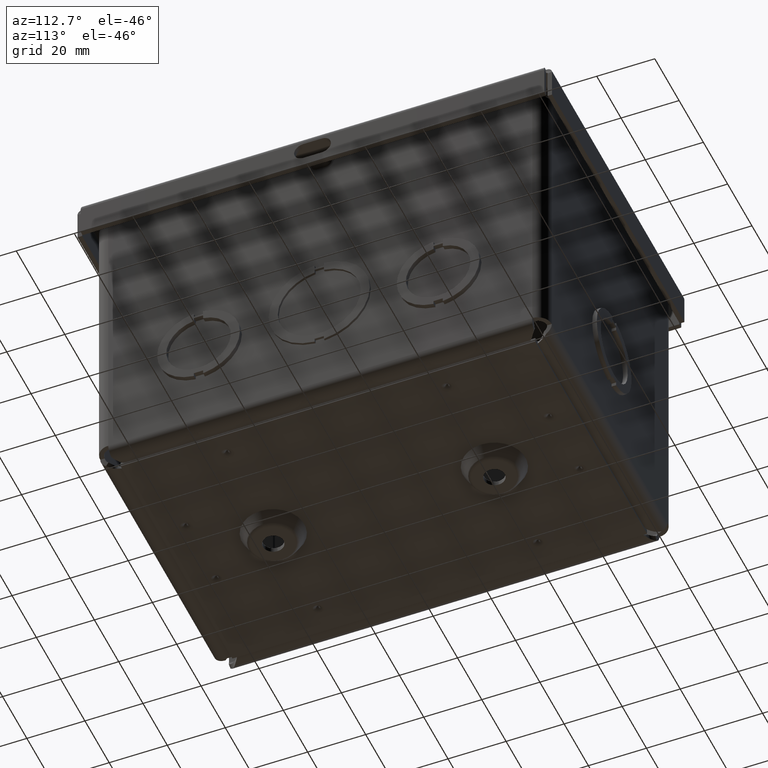
[diagram: clean part render]
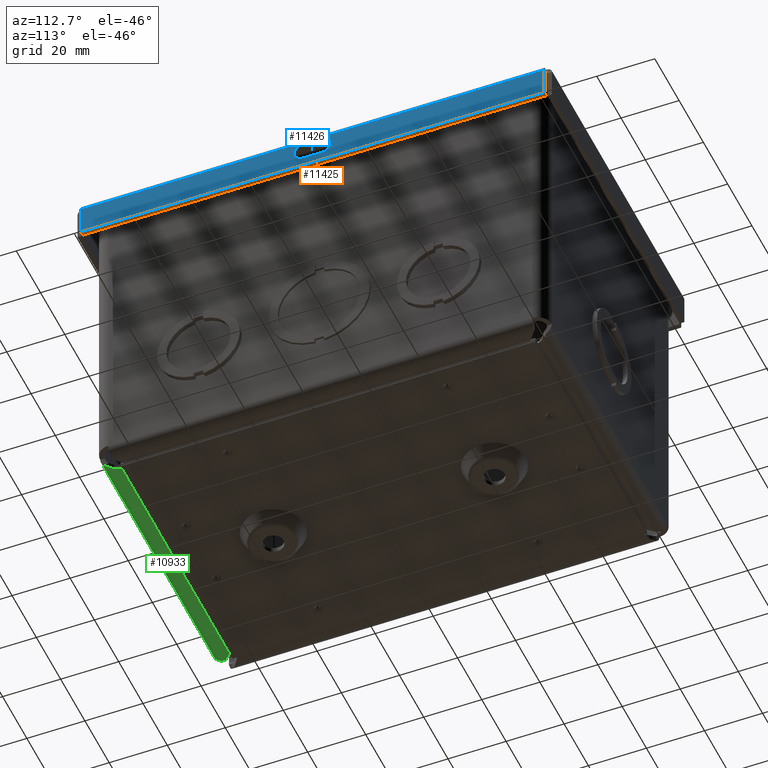
[diagram: same view with three faces highlighted in distinct colors, each labeled with its STEP entity id]
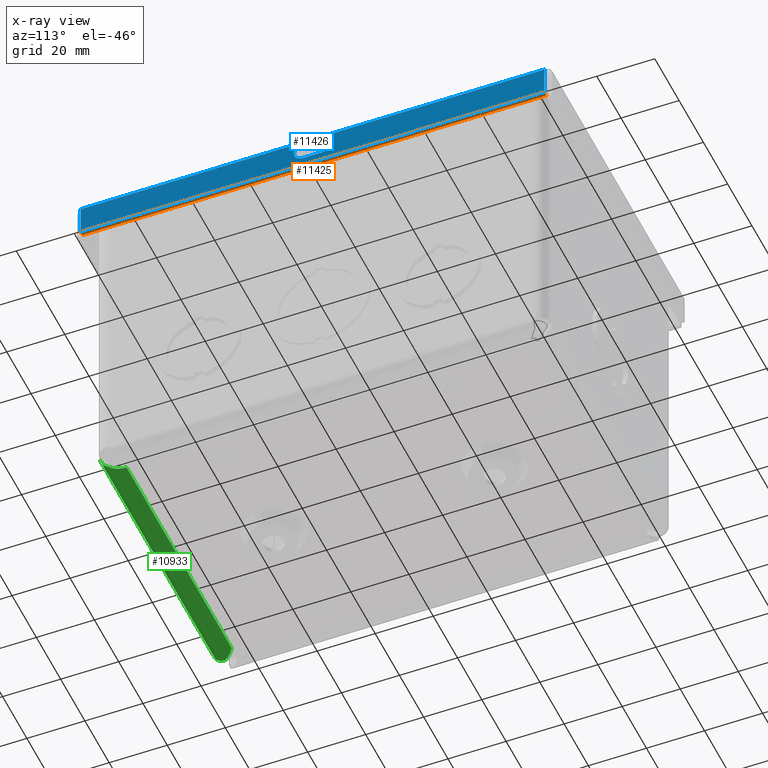
[diagram: x-ray of the same camera — body ghosted, the three highlighted faces saturated]
A machine part, auxiliary view with three faces highlighted in distinct colors.
The next image is the same camera in x-ray (body ghosted, the three faces saturated) — at least one of them is partly hidden behind the body in this view.
Their STEP definitions:

[orange] entity #11425 — the highlighted planar face has unit normal (-0, 0, -1).
#1460=LINE($,#19855,#2490);
#1464=LINE($,#19861,#2494);
#1468=LINE($,#19921,#2498);
#1469=LINE($,#19923,#2499);
#2490=VECTOR($,#15042,6.29040291308792);
#2494=VECTOR($,#15048,0.0619999999999998);
#2498=VECTOR($,#15054,0.0619999999999998);
#2499=VECTOR($,#15057,6.29040291308792);
#2878=PLANE($,#12307);
#3629=FACE_OUTER_BOUND($,#4385,.T.);
#4385=EDGE_LOOP($,(#10075,#10076,#10077,#10078));
#5588=VERTEX_POINT($,#19852);
#5589=VERTEX_POINT($,#19854);
#5590=VERTEX_POINT($,#19858);
#5591=VERTEX_POINT($,#19919);
#7040=EDGE_CURVE($,#5588,#5589,#1460,.T.);
#7044=EDGE_CURVE($,#5589,#5590,#1464,.T.);
#7050=EDGE_CURVE($,#5588,#5591,#1468,.T.);
#7051=EDGE_CURVE($,#5591,#5590,#1469,.T.);
#10075=ORIENTED_EDGE($,*,*,#7051,.T.);
#10076=ORIENTED_EDGE($,*,*,#7044,.F.);
#10077=ORIENTED_EDGE($,*,*,#7040,.F.);
#10078=ORIENTED_EDGE($,*,*,#7050,.T.);
#11425=ADVANCED_FACE($,(#3629),#2878,.T.);
#12307=AXIS2_PLACEMENT_3D($,#19922,#15055,#15056);
#15042=DIRECTION($,(5.59482469102442E-017,-1.,5.59482469102441E-017));
#15048=DIRECTION($,(1.,5.59482469102441E-017,-1.71512449944288E-015));
#15054=DIRECTION($,(1.,5.59482469102441E-017,-1.71512449944288E-015));
#15055=DIRECTION('center_axis',(-1.71512449944288E-015,-5.59482469102442E-017,
-1.));
#15056=DIRECTION('ref_axis',(-1.,0.,1.69197988952874E-015));
#15057=DIRECTION($,(5.59482469102442E-017,-1.,5.59482469102441E-017));
#19852=CARTESIAN_POINT('',(2.15625,3.14520145654396,-0.438000000000001));
#19854=CARTESIAN_POINT('',(2.15625,-3.14520145654396,-0.438));
#19855=CARTESIAN_POINT($,(2.15625,3.14520145654396,-0.438000000000001));
#19858=CARTESIAN_POINT('',(2.21825,-3.14520145654396,-0.438));
#19861=CARTESIAN_POINT($,(2.15625,-3.14520145654396,-0.438));
#19919=CARTESIAN_POINT('',(2.21825,3.14520145654396,-0.438000000000001));
#19921=CARTESIAN_POINT($,(2.15625,3.14520145654396,-0.438000000000001));
#19922=CARTESIAN_POINT('Origin',(2.15625,3.14520145654396,-0.438000000000001));
#19923=CARTESIAN_POINT($,(2.21825,3.14520145654396,-0.438000000000001));

[blue] entity #11426 — the highlighted planar face has unit normal (1, -0, -0).
#1351=LINE($,#19319,#2381);
#1355=LINE($,#19330,#2385);
#1456=LINE($,#19831,#2486);
#1462=LINE($,#19859,#2492);
#1467=LINE($,#19920,#2497);
#1469=LINE($,#19923,#2499);
#2381=VECTOR($,#14721,0.249999999999999);
#2385=VECTOR($,#14733,0.249999999999999);
#2486=VECTOR($,#15036,6.29040291308792);
#2492=VECTOR($,#15046,0.40675);
#2497=VECTOR($,#15053,0.40675);
#2499=VECTOR($,#15057,6.29040291308792);
#2879=PLANE($,#12308);
#3040=FACE_BOUND($,#4386,.T.);
#3041=FACE_BOUND($,#4387,.T.);
#4386=EDGE_LOOP($,(#10079,#10080,#10081,#10082));
#4387=EDGE_LOOP($,(#10083,#10084,#10085,#10086));
#4635=CIRCLE($,#12196,0.125);
#4637=CIRCLE($,#12200,0.125);
#5484=VERTEX_POINT($,#19309);
#5485=VERTEX_POINT($,#19310);
#5488=VERTEX_POINT($,#19318);
#5490=VERTEX_POINT($,#19324);
#5583=VERTEX_POINT($,#19829);
#5584=VERTEX_POINT($,#19830);
#5590=VERTEX_POINT($,#19858);
#5591=VERTEX_POINT($,#19919);
#6869=EDGE_CURVE($,#5484,#5485,#4635,.T.);
#6873=EDGE_CURVE($,#5488,#5484,#1351,.T.);
#6876=EDGE_CURVE($,#5490,#5488,#4637,.T.);
#6879=EDGE_CURVE($,#5485,#5490,#1355,.T.);
#7034=EDGE_CURVE($,#5583,#5584,#1456,.T.);
#7042=EDGE_CURVE($,#5590,#5584,#1462,.T.);
#7049=EDGE_CURVE($,#5583,#5591,#1467,.T.);
#7051=EDGE_CURVE($,#5591,#5590,#1469,.T.);
#10079=ORIENTED_EDGE($,*,*,#6869,.T.);
#10080=ORIENTED_EDGE($,*,*,#6879,.T.);
#10081=ORIENTED_EDGE($,*,*,#6876,.T.);
#10082=ORIENTED_EDGE($,*,*,#6873,.T.);
#10083=ORIENTED_EDGE($,*,*,#7034,.T.);
#10084=ORIENTED_EDGE($,*,*,#7042,.F.);
#10085=ORIENTED_EDGE($,*,*,#7051,.F.);
#10086=ORIENTED_EDGE($,*,*,#7049,.F.);
#11426=ADVANCED_FACE($,(#3040,#3041),#2879,.T.);
#12196=AXIS2_PLACEMENT_3D($,#19311,#14713,#14714);
#12200=AXIS2_PLACEMENT_3D($,#19325,#14726,#14727);
#12308=AXIS2_PLACEMENT_3D($,#19924,#15058,#15059);
#14713=DIRECTION('center_axis',(-1.,-6.6787594543663E-017,1.7151707234331E-015));
#14714=DIRECTION('ref_axis',(1.76248257655759E-015,1.11177788774542E-016,
1.));
#14721=DIRECTION($,(6.67875945436632E-017,-1.,1.11177788774542E-016));
#14726=DIRECTION('center_axis',(-1.,-6.6787594543663E-017,1.7151707234331E-015));
#14727=DIRECTION('ref_axis',(-1.76248257655759E-015,-1.11177788774542E-016,
-1.));
#14733=DIRECTION($,(-6.67875945436632E-017,1.,-1.11177788774542E-016));
#15036=DIRECTION($,(6.6787594543663E-017,-1.,-1.85908306840549E-032));
#15046=DIRECTION($,(1.71512449944288E-015,9.86076131526265E-032,1.));
#15053=DIRECTION($,(-1.71512449944288E-015,-9.86076131526265E-032,-1.));
#15057=DIRECTION($,(5.59482469102442E-017,-1.,5.59482469102441E-017));
#15058=DIRECTION('center_axis',(1.,6.6787594543663E-017,-1.7151707234331E-015));
#15059=DIRECTION('ref_axis',(-2.25597318603832E-015,-5.59482469102442E-017,
-1.));
#19309=CARTESIAN_POINT('',(2.21825,-0.124999999999999,-0.313));
#19310=CARTESIAN_POINT('',(2.21825,-0.124999999999999,-0.0630000000000003));
#19311=CARTESIAN_POINT('Origin',(2.21825,-0.124999999999999,-0.188));
#19318=CARTESIAN_POINT('',(2.21825,0.125,-0.313));
#19319=CARTESIAN_POINT($,(2.21825,0.0625000000000002,-0.313));
#19324=CARTESIAN_POINT('',(2.21825,0.125,-0.0630000000000003));
#19325=CARTESIAN_POINT('Origin',(2.21825,0.125,-0.188));
#19330=CARTESIAN_POINT($,(2.21825,-0.0624999999999993,-0.0630000000000003));
#19829=CARTESIAN_POINT('',(2.21825,3.14520145654396,-0.0312500000000006));
#19830=CARTESIAN_POINT('',(2.21825,-3.14520145654396,-0.0312499999999999));
#19831=CARTESIAN_POINT($,(2.21825,4.52301931858159E-016,-0.0312499999999999));
#19858=CARTESIAN_POINT('',(2.21825,-3.14520145654396,-0.438));
#19859=CARTESIAN_POINT($,(2.21825,-3.14520145654396,-0.0312499999999999));
#19919=CARTESIAN_POINT('',(2.21825,3.14520145654396,-0.438000000000001));
#19920=CARTESIAN_POINT($,(2.21825,3.14520145654396,-0.031250000000001));
#19923=CARTESIAN_POINT($,(2.21825,3.14520145654396,-0.438000000000001));
#19924=CARTESIAN_POINT('Origin',(2.21825,1.99497987789928E-016,-0.200820664064585));

[green] entity #10933 — the highlighted cylindrical surface (edge-blend (fillet) strip) has radius 3.956 mm, axis along (1, 0, -0).
#116=B_SPLINE_CURVE_WITH_KNOTS($,3,(#16296,#16297,#16298,#16299),
 .UNSPECIFIED.,.F.,.F.,(4,4),(0.,0.96416596075717),.UNSPECIFIED.);
#119=B_SPLINE_CURVE_WITH_KNOTS($,3,(#16336,#16337,#16338,#16339,#16340,
#16341,#16342),.UNSPECIFIED.,.F.,.F.,(4,3,4),(0.,0.652720754912717,1.52301509479594),
 .UNSPECIFIED.);
#137=B_SPLINE_CURVE_WITH_KNOTS($,3,(#16801,#16802,#16803,#16804,#16805,
#16806,#16807),.UNSPECIFIED.,.F.,.F.,(4,3,4),(0.,0.595127917057982,1.04147385485147),
 .UNSPECIFIED.);
#314=CYLINDRICAL_SURFACE($,#11641,0.155749999999986);
#650=LINE($,#16799,#1680);
#651=LINE($,#16809,#1681);
#1680=VECTOR($,#12906,3.41094083227771);
#1681=VECTOR($,#12907,3.684);
#3162=FACE_OUTER_BOUND($,#3836,.T.);
#3836=EDGE_LOOP($,(#7644,#7645,#7646,#7647,#7648,#7649,#7650));
#4488=CIRCLE($,#11631,0.155749999999998);
#4491=CIRCLE($,#11642,0.155749999999998);
#4868=VERTEX_POINT($,#16229);
#4869=VERTEX_POINT($,#16258);
#4873=VERTEX_POINT($,#16295);
#4876=VERTEX_POINT($,#16334);
#4951=VERTEX_POINT($,#16716);
#4957=VERTEX_POINT($,#16800);
#4958=VERTEX_POINT($,#16808);
#5835=EDGE_CURVE($,#4873,#4869,#116,.T.);
#5840=EDGE_CURVE($,#4868,#4876,#119,.T.);
#5943=EDGE_CURVE($,#4873,#4951,#4488,.T.);
#5962=EDGE_CURVE($,#4868,#4869,#650,.T.);
#5963=EDGE_CURVE($,#4957,#4876,#137,.T.);
#5964=EDGE_CURVE($,#4958,#4957,#651,.T.);
#5965=EDGE_CURVE($,#4951,#4958,#4491,.T.);
#7644=ORIENTED_EDGE($,*,*,#5835,.T.);
#7645=ORIENTED_EDGE($,*,*,#5962,.F.);
#7646=ORIENTED_EDGE($,*,*,#5840,.T.);
#7647=ORIENTED_EDGE($,*,*,#5963,.F.);
#7648=ORIENTED_EDGE($,*,*,#5964,.F.);
#7649=ORIENTED_EDGE($,*,*,#5965,.F.);
#7650=ORIENTED_EDGE($,*,*,#5943,.F.);
#10933=ADVANCED_FACE($,(#3162),#314,.T.);
#11631=AXIS2_PLACEMENT_3D($,#16717,#12873,#12874);
#11641=AXIS2_PLACEMENT_3D($,#16798,#12904,#12905);
#11642=AXIS2_PLACEMENT_3D($,#16810,#12908,#12909);
#12873=DIRECTION('center_axis',(-1.,0.,0.));
#12874=DIRECTION('ref_axis',(0.,0.999564119781697,0.0295223719413275));
#12904=DIRECTION('center_axis',(1.,0.,0.));
#12905=DIRECTION('ref_axis',(0.,1.,-4.62692029532626E-015));
#12906=DIRECTION($,(-1.,-2.64707226129792E-017,-4.06593364513518E-017));
#12907=DIRECTION($,(1.,0.,0.));
#12908=DIRECTION('center_axis',(-1.,0.,0.));
#12909=DIRECTION('ref_axis',(0.,1.,-4.6305481240923E-015));
#16229=CARTESIAN_POINT('',(1.57796638388074,2.17872704396146,0.286275723516746));
#16258=CARTESIAN_POINT('',(-1.83297444839697,2.17872704396146,0.286275723516745));
#16295=CARTESIAN_POINT('',(-1.93550000000002,2.24943211165599,0.160348109429856));
#16296=CARTESIAN_POINT('Ctrl Pts',(-1.93550000000002,2.24943211165599,0.160348109429856));
#16297=CARTESIAN_POINT('Ctrl Pts',(-1.90132481613234,2.24795433145729,0.210382573682358));
#16298=CARTESIAN_POINT('Ctrl Pts',(-1.86714963226465,2.22067653050081,0.258965065772274));
#16299=CARTESIAN_POINT('Ctrl Pts',(-1.83297444839697,2.17872704396146,0.286275723516743));
#16334=CARTESIAN_POINT('',(1.73991771700089,2.2281855167881,0.0771042478838524));
#16336=CARTESIAN_POINT('Ctrl Pts',(1.57796638388074,2.17872704396146,0.286275723516743));
#16337=CARTESIAN_POINT('Ctrl Pts',(1.60110228861219,2.20712599355792,0.267786963421818));
#16338=CARTESIAN_POINT('Ctrl Pts',(1.62423819334365,2.22932700063596,0.239680461226046));
#16339=CARTESIAN_POINT('Ctrl Pts',(1.64737409807511,2.2405571560928,0.207805062303747));
#16340=CARTESIAN_POINT('Ctrl Pts',(1.67822197105037,2.25553069670193,0.165304530407369));
#16341=CARTESIAN_POINT('Ctrl Pts',(1.70906984402563,2.25100050109562,0.11610373766384));
#16342=CARTESIAN_POINT('Ctrl Pts',(1.73991771700089,2.2281855167881,0.0771042478838514));
#16716=CARTESIAN_POINT('',(-1.9355,2.2495,0.155749999999994));
#16717=CARTESIAN_POINT('Origin',(-1.9355,2.09375,0.155749999999995));
#16798=CARTESIAN_POINT('Origin',(-0.0935000000000008,2.09375,0.155749999999995));
#16799=CARTESIAN_POINT($,(-0.153684837436399,2.17872704396146,0.286275723516745));
#16800=CARTESIAN_POINT('',(1.7485,2.09375,2.18547839493141E-017));
#16801=CARTESIAN_POINT('Ctrl Pts',(1.74850000000004,2.09375,-2.22918796283004E-015));
#16802=CARTESIAN_POINT('Ctrl Pts',(1.74686527942878,2.12464705769393,-1.68036571726154E-015));
#16803=CARTESIAN_POINT('Ctrl Pts',(1.74523055885752,2.15547696540511,0.00948532474144449));
#16804=CARTESIAN_POINT('Ctrl Pts',(1.74359583828626,2.18106041154714,0.0267760467131321));
#16805=CARTESIAN_POINT('Ctrl Pts',(1.74236979785782,2.20024799615366,0.039744088191898));
#16806=CARTESIAN_POINT('Ctrl Pts',(1.74114375742937,2.21648444612752,0.0571026656126747));
#16807=CARTESIAN_POINT('Ctrl Pts',(1.73991771700093,2.22818551678811,0.0771042478838543));
#16808=CARTESIAN_POINT('',(-1.9355,2.09375,0.));
#16809=CARTESIAN_POINT($,(-1.9355,2.09375,0.));
#16810=CARTESIAN_POINT('Origin',(-1.9355,2.09375,0.155749999999995));